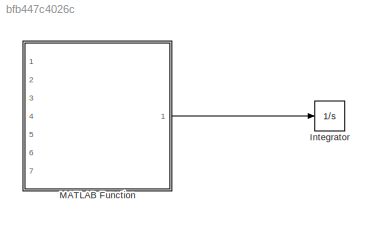
MODEL slx_bfb447c4026c
KIND model
CONFIG AbsTol = auto
CONFIG EnableMultiTasking = off
CONFIG FixedStep = auto
CONFIG MaxStep = auto
CONFIG MinStep = auto
CONFIG RelTol = 1e-3
CONFIG SampleTimeConstraint = Unconstrained
CONFIG Solver = VariableStepAuto
CONFIG SolverName = VariableStepAuto
CONFIG StartTime = 0.0
CONFIG StopTime = 10.0
BLOCK [Integrator] Integrator
  Ports = [1, 1]
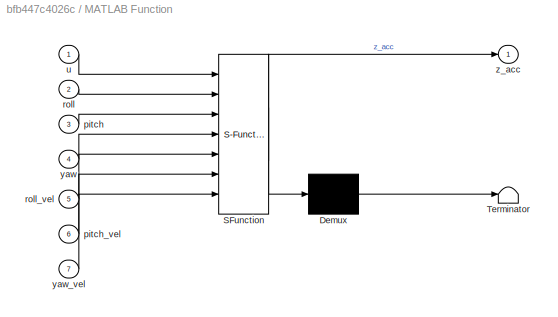
BLOCK [SubSystem] MATLAB Function
  ErrorFcn = Stateflow.Translate.translate
  PermitHierarchicalResolution = ExplicitOnly
  Ports = [7, 1]
  RequestExecContextInheritance = off
  SFBlockType = MATLAB Function
  TreatAsAtomicUnit = on
BLOCK [Demux] MATLAB Function/ Demux 
  Outputs = 1
  Ports = [1, 1]
BLOCK [S-Function] MATLAB Function/ SFunction 
  EnableBusSupport = on
  FunctionName = sf_sfun
  PortCounts = [7 2]
  Ports = [7, 2]
  SFcnIsStateOwnerBlock = off
  SFunctionDeploymentMode = off
  Tag = Stateflow S-Function test_simu1 2
BLOCK [Terminator] MATLAB Function/ Terminator 
BLOCK [Inport] MATLAB Function/pitch
  IconDisplay = Port number
  Port = 3
BLOCK [Inport] MATLAB Function/pitch_vel
  IconDisplay = Port number
  Port = 6
BLOCK [Inport] MATLAB Function/roll
  IconDisplay = Port number
  Port = 2
BLOCK [Inport] MATLAB Function/roll_vel
  IconDisplay = Port number
  Port = 5
BLOCK [Inport] MATLAB Function/u
  IconDisplay = Port number
BLOCK [Inport] MATLAB Function/yaw
  IconDisplay = Port number
  Port = 4
BLOCK [Inport] MATLAB Function/yaw_vel
  IconDisplay = Port number
  Port = 7
BLOCK [Outport] MATLAB Function/z_acc
  IconDisplay = Port number
LINE MATLAB Function:1 -> Integrator:1
CHART MATLAB Function states=1 transitions=1
  STATE_LABEL 'eML_blk_kernel()'
  STATE_LABEL 'SCRIPT:\nfunction z_acc = fcn(u, roll, pitch, yaw, roll_vel, pitch_vel, yaw_vel)\n\nm = 0.5;\nl = 0.25;\nI_xx = 0.0196;\nI_yy = I_xx;\nI_zz = 0.0264;\nJr = 0.001;\nT = [7.39, 5.39, 5.39, 5.39];\nb = 3.0 *10^-5;\nd = 1.1*10^-6;\nR = sqrt(T/b);\nOmega_r = sqrt(R(1)^2-R(2)^2+R(3)^2-R(4)^2);\nOmega = sqrt(R.^2);\nU1 = b*(Omega(1)^2+Omega(2)^2+Omega(3)^2+Omega(4)^2);\nU2 = b*(-Omega(4)^2+Omega(4)^2);\nU3 = b*(Omega(1)^...<+567ch>'
